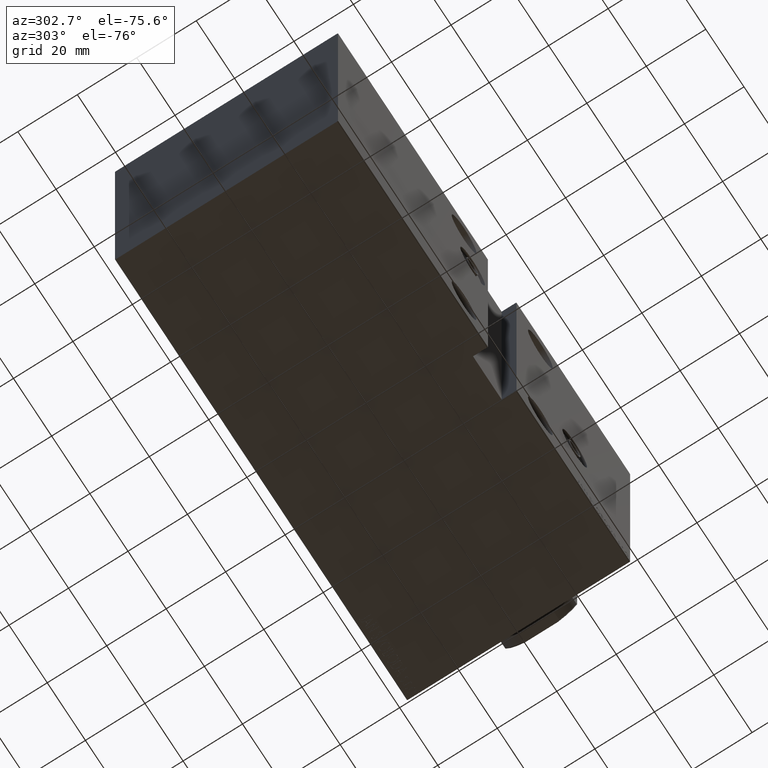
[diagram: clean part render]
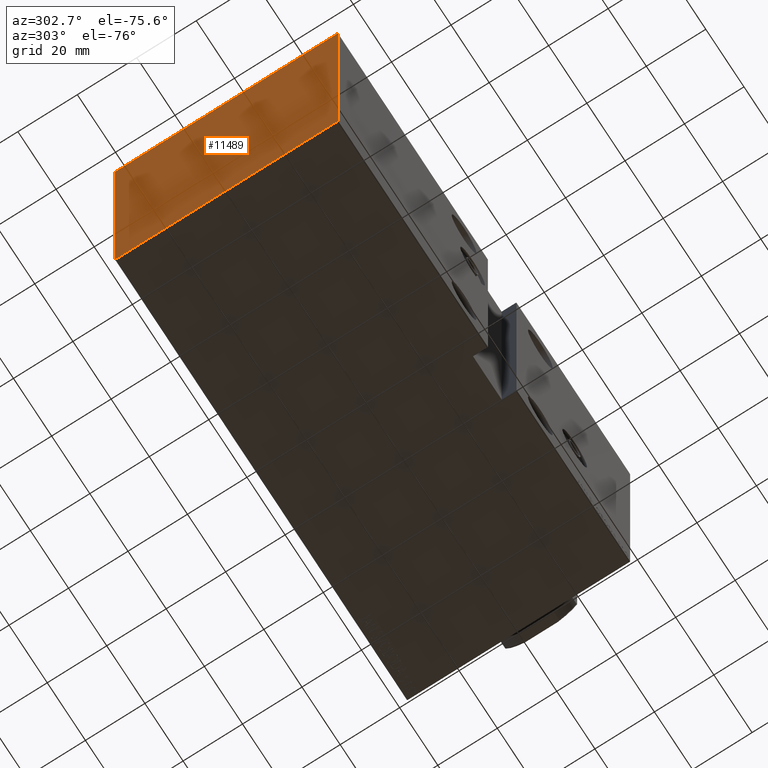
[diagram: same view with one face highlighted and labeled with its STEP entity id]
A machine part, auxiliary view. The second image highlights one B-rep face of the part: STEP entity #11489.
In plain terms, the highlighted planar face has unit normal (-1, -0, 0).
Its self-contained STEP definition (entity closure, byte-faithful):
#78 = EDGE_CURVE ( 'NONE', #39931, #18102, #6256, .T. ) ;
#964 = ORIENTED_EDGE ( 'NONE', *, *, #1348, .T. ) ;
#1229 = ORIENTED_EDGE ( 'NONE', *, *, #11920, .T. ) ;
#1348 = EDGE_CURVE ( 'NONE', #31482, #31163, #38493, .T. ) ;
#2104 = EDGE_CURVE ( 'NONE', #18102, #3120, #30509, .T. ) ;
#2365 = CARTESIAN_POINT ( 'NONE',  ( 153.0000000000000000, -37.49999999999999289, -49.69999999999998153 ) ) ;
#2607 = CARTESIAN_POINT ( 'NONE',  ( 153.0000000000000000, -43.59999999999998721, -43.59999999999998721 ) ) ;
#3120 = VERTEX_POINT ( 'NONE', #25830 ) ;
#3571 = ORIENTED_EDGE ( 'NONE', *, *, #7366, .T. ) ;
#3701 = CARTESIAN_POINT ( 'NONE',  ( 153.0000000000000000, 37.50000000000000711, 49.70000000000003837 ) ) ;
#5007 = EDGE_CURVE ( 'NONE', #3120, #31482, #11682, .T. ) ;
#5280 = VECTOR ( 'NONE', #22333, 1000.000000000000000 ) ;
#5485 = LINE ( 'NONE', #2607, #7391 ) ;
#5777 = DIRECTION ( 'NONE',  ( -0.000000000000000000, 0.7071067811865474617, 0.7071067811865474617 ) ) ;
#6256 = LINE ( 'NONE', #40114, #39944 ) ;
#7366 = EDGE_CURVE ( 'NONE', #40875, #12212, #12666, .T. ) ;
#7391 = VECTOR ( 'NONE', #25852, 1000.000000000000114 ) ;
#8175 = CARTESIAN_POINT ( 'NONE',  ( 153.0000000000000000, -37.49999999999999289, 50.00000000000000000 ) ) ;
#9454 = VECTOR ( 'NONE', #5777, 1000.000000000000114 ) ;
#9726 = PLANE ( 'NONE',  #12387 ) ;
#11405 = EDGE_CURVE ( 'NONE', #12212, #39931, #15488, .T. ) ;
#11489 = ADVANCED_FACE ( 'NONE', ( #13493 ), #9726, .T. ) ;
#11682 = LINE ( 'NONE', #19179, #42994 ) ;
#11741 = CARTESIAN_POINT ( 'NONE',  ( 153.0000000000000000, 37.50000000000002132, -49.69999999999998153 ) ) ;
#11797 = CARTESIAN_POINT ( 'NONE',  ( 153.0000000000000000, -37.49999999999999289, -50.00000000000000000 ) ) ;
#11920 = EDGE_CURVE ( 'NONE', #25220, #40875, #38144, .T. ) ;
#11940 = DIRECTION ( 'NONE',  ( 0.000000000000000000, 0.000000000000000000, -1.000000000000000000 ) ) ;
#12212 = VERTEX_POINT ( 'NONE', #11741 ) ;
#12387 = AXIS2_PLACEMENT_3D ( 'NONE', #13717, #20544, #26976 ) ;
#12666 = LINE ( 'NONE', #43398, #9454 ) ;
#13493 = FACE_OUTER_BOUND ( 'NONE', #28726, .T. ) ;
#13717 = CARTESIAN_POINT ( 'NONE',  ( 153.0000000000000000, 0.000000000000000000, 0.000000000000000000 ) ) ;
#15334 = DIRECTION ( 'NONE',  ( 0.000000000000000000, 1.000000000000000000, 0.000000000000000000 ) ) ;
#15488 = LINE ( 'NONE', #36259, #5280 ) ;
#15732 = ORIENTED_EDGE ( 'NONE', *, *, #42520, .T. ) ;
#16318 = ORIENTED_EDGE ( 'NONE', *, *, #2104, .T. ) ;
#16673 = VECTOR ( 'NONE', #11940, 1000.000000000000000 ) ;
#18102 = VERTEX_POINT ( 'NONE', #24083 ) ;
#18118 = VECTOR ( 'NONE', #33604, 1000.000000000000000 ) ;
#19179 = CARTESIAN_POINT ( 'NONE',  ( 153.0000000000000000, -43.59999999999998721, 43.59999999999998721 ) ) ;
#19756 = DIRECTION ( 'NONE',  ( -0.000000000000000000, -0.7071067811865802133, 0.7071067811865149322 ) ) ;
#20015 = CARTESIAN_POINT ( 'NONE',  ( 153.0000000000000000, 37.19999999999999574, -50.00000000000000000 ) ) ;
#20098 = CARTESIAN_POINT ( 'NONE',  ( 153.0000000000000000, 37.50000000000000711, 50.00000000000000000 ) ) ;
#20544 = DIRECTION ( 'NONE',  ( 1.000000000000000000, 0.000000000000000000, 0.000000000000000000 ) ) ;
#20880 = VECTOR ( 'NONE', #15334, 1000.000000000000000 ) ;
#22333 = DIRECTION ( 'NONE',  ( 0.000000000000000000, -1.387778780781445676E-16, 1.000000000000000000 ) ) ;
#24083 = CARTESIAN_POINT ( 'NONE',  ( 153.0000000000000000, 37.20000000000000995, 50.00000000000000000 ) ) ;
#25220 = VERTEX_POINT ( 'NONE', #40801 ) ;
#25830 = CARTESIAN_POINT ( 'NONE',  ( 153.0000000000000000, -37.19999999999996732, 50.00000000000000000 ) ) ;
#25852 = DIRECTION ( 'NONE',  ( -0.000000000000000000, 0.7071067811865474617, -0.7071067811865474617 ) ) ;
#26976 = DIRECTION ( 'NONE',  ( 0.000000000000000000, 0.000000000000000000, -1.000000000000000000 ) ) ;
#26990 = ORIENTED_EDGE ( 'NONE', *, *, #78, .T. ) ;
#28046 = CARTESIAN_POINT ( 'NONE',  ( 153.0000000000000000, -37.49999999999999289, 49.69999999999998153 ) ) ;
#28726 = EDGE_LOOP ( 'NONE', ( #1229, #3571, #32761, #26990, #16318, #34065, #964, #15732 ) ) ;
#30509 = LINE ( 'NONE', #20098, #18118 ) ;
#31163 = VERTEX_POINT ( 'NONE', #2365 ) ;
#31482 = VERTEX_POINT ( 'NONE', #28046 ) ;
#32761 = ORIENTED_EDGE ( 'NONE', *, *, #11405, .T. ) ;
#33604 = DIRECTION ( 'NONE',  ( 0.000000000000000000, -1.000000000000000000, 0.000000000000000000 ) ) ;
#34065 = ORIENTED_EDGE ( 'NONE', *, *, #5007, .T. ) ;
#36259 = CARTESIAN_POINT ( 'NONE',  ( 153.0000000000000000, 37.50000000000002132, -50.00000000000000000 ) ) ;
#38144 = LINE ( 'NONE', #11797, #20880 ) ;
#38493 = LINE ( 'NONE', #8175, #16673 ) ;
#39931 = VERTEX_POINT ( 'NONE', #3701 ) ;
#39944 = VECTOR ( 'NONE', #19756, 999.9999999999998863 ) ;
#40114 = CARTESIAN_POINT ( 'NONE',  ( 153.0000000000000000, 43.59999999999828901, 43.60000000000231779 ) ) ;
#40801 = CARTESIAN_POINT ( 'NONE',  ( 153.0000000000000000, -37.19999999999996732, -50.00000000000000000 ) ) ;
#40875 = VERTEX_POINT ( 'NONE', #20015 ) ;
#42194 = DIRECTION ( 'NONE',  ( 0.000000000000000000, -0.7071067811865474617, -0.7071067811865474617 ) ) ;
#42520 = EDGE_CURVE ( 'NONE', #31163, #25220, #5485, .T. ) ;
#42994 = VECTOR ( 'NONE', #42194, 1000.000000000000114 ) ;
#43398 = CARTESIAN_POINT ( 'NONE',  ( 153.0000000000000000, 43.60000000000000142, -43.60000000000000142 ) ) ;